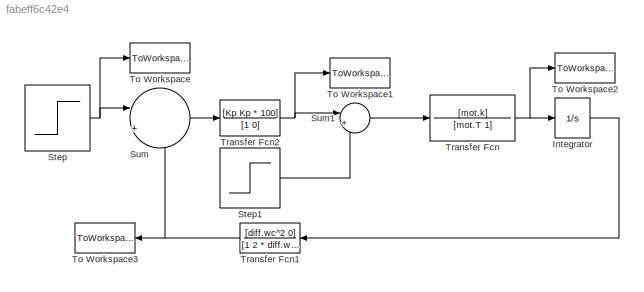
MODEL slx_fabeff6c42e4
KIND model
CONFIG AbsTol = auto
CONFIG EnableMultiTasking = off
CONFIG FixedStep = auto
CONFIG MaxStep = 0.001
CONFIG MinStep = auto
CONFIG RelTol = 1e-3
CONFIG SampleTimeConstraint = Unconstrained
CONFIG SolverName = ode45
CONFIG StartTime = 0.0
CONFIG StopTime = 5
BLOCK [Integrator] Integrator
  InitialCondition = w0
  Ports = [1, 1]
BLOCK [Step] Step
  After = w.A
  SampleTime = 0
  Time = w.t
BLOCK [Step] Step1
  After = d.A
  SampleTime = 0
  Time = d.t
BLOCK [Sum] Sum
  Inputs = |+-
  Ports = [2, 1]
BLOCK [Sum] Sum1
  Inputs = |++
  NameLocation = top
  Ports = [2, 1]
BLOCK [ToWorkspace] To Workspace
  FixptAsFi = on
  MaxDataPoints = inf
  Ports = [1]
  SampleTime = -1
  SaveFormat = Timeseries
  VariableName = w_star_i
BLOCK [ToWorkspace] To Workspace1
  FixptAsFi = on
  MaxDataPoints = inf
  Ports = [1]
  SampleTime = -1
  SaveFormat = Timeseries
  VariableName = u_i
BLOCK [ToWorkspace] To Workspace2
  FixptAsFi = on
  MaxDataPoints = inf
  Ports = [1]
  SampleTime = -1
  SaveFormat = Timeseries
  VariableName = w_i
BLOCK [ToWorkspace] To Workspace3
  FixptAsFi = on
  MaxDataPoints = inf
  Ports = [1]
  SampleTime = -1
  SaveFormat = Timeseries
  VariableName = wm_i
BLOCK [TransferFcn] Transfer Fcn
  Denominator = [mot.T 1]
  Numerator = [mot.k]
BLOCK [TransferFcn] Transfer Fcn1
  Denominator = [1 2 * diff.wc * diff.d diff.wc^2]
  Numerator = [diff.wc^2 0]
BLOCK [TransferFcn] Transfer Fcn2
  Denominator = [1 0]
  Numerator = [Kp Kp * 100]
LINE Integrator:1 -> Transfer Fcn1:1
LINE Step1:1 -> Sum1:2
NET Step:1 -> Sum:1, To Workspace:1
LINE Sum1:1 -> Transfer Fcn:1
LINE Sum:1 -> Transfer Fcn2:1
NET Transfer Fcn1:1 -> Sum:2, To Workspace3:1
NET Transfer Fcn2:1 -> Sum1:1, To Workspace1:1
NET Transfer Fcn:1 -> Integrator:1, To Workspace2:1
note: NET lines group one-source signal fan-out (src -> all destinations, sorted); 1:1 wires keep LINE
